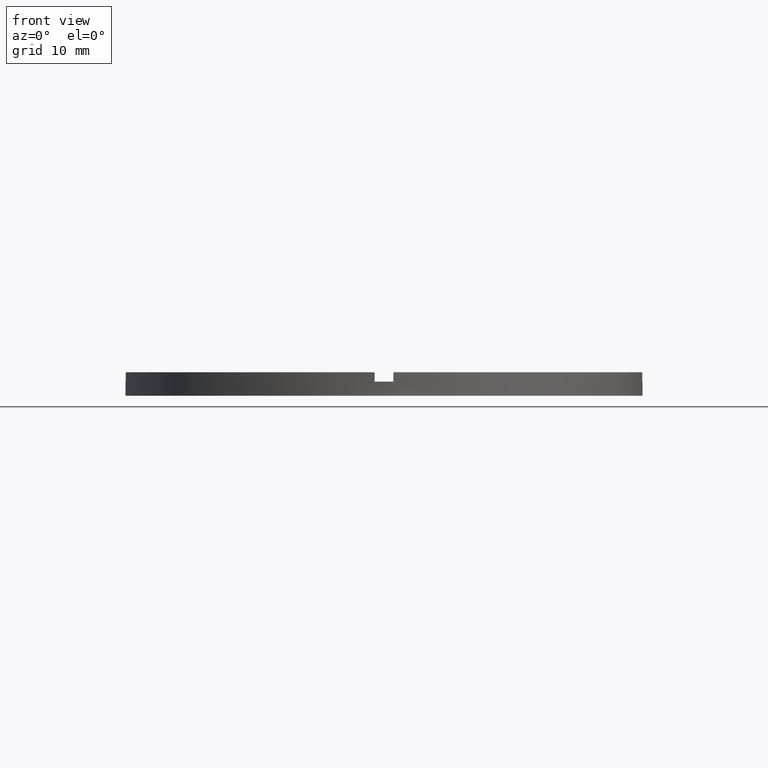
[diagram: clean part render]
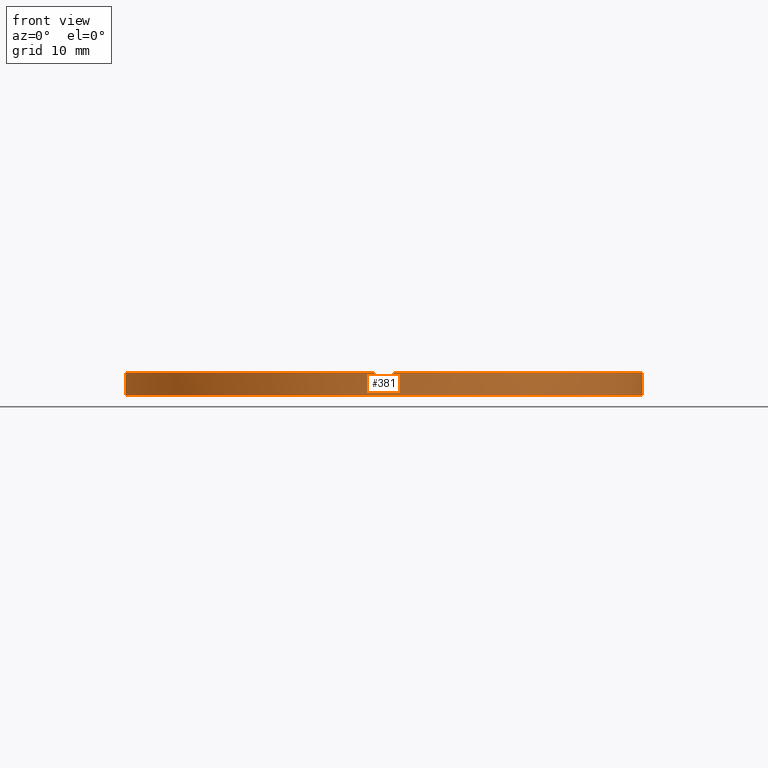
[diagram: same view with one face highlighted and labeled with its STEP entity id]
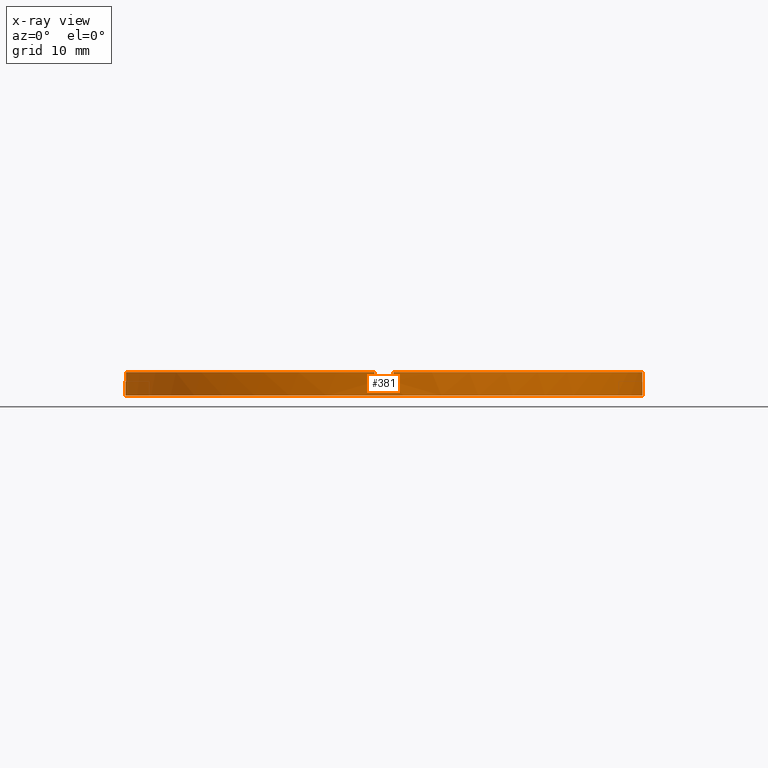
[diagram: x-ray of the same camera — body ghosted, the highlighted face saturated]
A machine part, front view. The second image highlights one B-rep face of the part: STEP entity #381.
The next image is the same camera in x-ray: the body ghosted, the highlighted face saturated — about 0% of this face is hidden behind the body in this view.
In plain terms, the highlighted cylindrical surface (partial cylindrical patch) has radius 27.5 mm, axis along (-0, -0, -1).
Its self-contained STEP definition (entity closure, byte-faithful):
#4 = EDGE_CURVE ( 'NONE', #176, #85, #69, .T. ) ;
#13 = CARTESIAN_POINT ( 'NONE',  ( 27.50000000000000000, 3.367778697655221307E-15, 0.000000000000000000 ) ) ;
#21 = DIRECTION ( 'NONE',  ( 0.000000000000000000, 0.000000000000000000, 1.000000000000000000 ) ) ;
#26 = EDGE_CURVE ( 'NONE', #460, #195, #579, .T. ) ;
#27 = DIRECTION ( 'NONE',  ( 1.000000000000000000, 0.000000000000000000, 0.000000000000000000 ) ) ;
#34 = EDGE_CURVE ( 'NONE', #177, #114, #345, .T. ) ;
#48 = DIRECTION ( 'NONE',  ( 1.000000000000000000, 0.000000000000000000, 0.000000000000000000 ) ) ;
#54 = CARTESIAN_POINT ( 'NONE',  ( 0.000000000000000000, 0.000000000000000000, 1.500000000000000000 ) ) ;
#63 = VECTOR ( 'NONE', #771, 1000.000000000000000 ) ;
#69 = CIRCLE ( 'NONE', #419, 27.50000000000000000 ) ;
#72 = CARTESIAN_POINT ( 'NONE',  ( -27.50000000000000000, 0.000000000000000000, 2.500000000000000000 ) ) ;
#80 = VECTOR ( 'NONE', #415, 1000.000000000000000 ) ;
#84 = LINE ( 'NONE', #735, #92 ) ;
#85 = VERTEX_POINT ( 'NONE', #746 ) ;
#92 = VECTOR ( 'NONE', #476, 1000.000000000000000 ) ;
#96 = DIRECTION ( 'NONE',  ( 1.000000000000000000, 0.000000000000000000, 0.000000000000000000 ) ) ;
#111 = CARTESIAN_POINT ( 'NONE',  ( -27.48181216732259102, -1.000000000000026867, 1.500000000000000000 ) ) ;
#114 = VERTEX_POINT ( 'NONE', #111 ) ;
#116 = VERTEX_POINT ( 'NONE', #178 ) ;
#124 = VERTEX_POINT ( 'NONE', #409 ) ;
#126 = VERTEX_POINT ( 'NONE', #373 ) ;
#127 = EDGE_CURVE ( 'NONE', #116, #126, #338, .T. ) ;
#136 = ORIENTED_EDGE ( 'NONE', *, *, #149, .T. ) ;
#139 = AXIS2_PLACEMENT_3D ( 'NONE', #159, #538, #96 ) ;
#144 = CARTESIAN_POINT ( 'NONE',  ( -27.48181216732259102, -1.000000000000026867, 2.500000000000000000 ) ) ;
#145 = CARTESIAN_POINT ( 'NONE',  ( 0.000000000000000000, 0.000000000000000000, 2.500000000000000000 ) ) ;
#147 = DIRECTION ( 'NONE',  ( -0.000000000000000000, 0.000000000000000000, 1.000000000000000000 ) ) ;
#149 = EDGE_CURVE ( 'NONE', #698, #85, #608, .T. ) ;
#152 = LINE ( 'NONE', #72, #426 ) ;
#155 = EDGE_CURVE ( 'NONE', #176, #465, #84, .T. ) ;
#159 = CARTESIAN_POINT ( 'NONE',  ( 0.000000000000000000, 0.000000000000000000, 2.500000000000000000 ) ) ;
#161 = EDGE_CURVE ( 'NONE', #116, #460, #359, .T. ) ;
#163 = CIRCLE ( 'NONE', #139, 27.50000000000000000 ) ;
#170 = ORIENTED_EDGE ( 'NONE', *, *, #155, .T. ) ;
#171 = AXIS2_PLACEMENT_3D ( 'NONE', #643, #454, #48 ) ;
#176 = VERTEX_POINT ( 'NONE', #587 ) ;
#177 = VERTEX_POINT ( 'NONE', #646 ) ;
#178 = CARTESIAN_POINT ( 'NONE',  ( 27.48181216732258392, -1.000000000000157208, 1.500000000000000000 ) ) ;
#191 = DIRECTION ( 'NONE',  ( -0.000000000000000000, -0.000000000000000000, -1.000000000000000000 ) ) ;
#192 = ORIENTED_EDGE ( 'NONE', *, *, #531, .T. ) ;
#193 = EDGE_LOOP ( 'NONE', ( #642, #676, #748, #432, #136, #708, #170, #715, #710, #760, #722, #192 ) ) ;
#195 = VERTEX_POINT ( 'NONE', #13 ) ;
#198 = CARTESIAN_POINT ( 'NONE',  ( 27.50000000000000000, 3.367778697655221307E-15, 1.500000000000000000 ) ) ;
#206 = DIRECTION ( 'NONE',  ( 1.000000000000000000, 0.000000000000000000, 0.000000000000000000 ) ) ;
#235 = CIRCLE ( 'NONE', #564, 27.50000000000000000 ) ;
#250 = DIRECTION ( 'NONE',  ( 0.000000000000000000, 0.000000000000000000, 1.000000000000000000 ) ) ;
#277 = CARTESIAN_POINT ( 'NONE',  ( -1.000000000000160094, -27.48181216732258392, 2.500000000000000000 ) ) ;
#285 = DIRECTION ( 'NONE',  ( 1.000000000000000000, 0.000000000000000000, 0.000000000000000000 ) ) ;
#306 = CARTESIAN_POINT ( 'NONE',  ( 0.9999999999998400169, -27.48181216732259458, 2.500000000000000000 ) ) ;
#330 = DIRECTION ( 'NONE',  ( 0.000000000000000000, 0.000000000000000000, 1.000000000000000000 ) ) ;
#338 = LINE ( 'NONE', #417, #607 ) ;
#345 = LINE ( 'NONE', #144, #605 ) ;
#359 = CIRCLE ( 'NONE', #546, 27.50000000000000000 ) ;
#371 = DIRECTION ( 'NONE',  ( -0.000000000000000000, -0.000000000000000000, -1.000000000000000000 ) ) ;
#373 = CARTESIAN_POINT ( 'NONE',  ( 27.48181216732258392, -1.000000000000157208, 2.500000000000000000 ) ) ;
#378 = EDGE_CURVE ( 'NONE', #177, #465, #163, .T. ) ;
#381 = ADVANCED_FACE ( 'NONE', ( #684 ), #679, .T. ) ;
#393 = AXIS2_PLACEMENT_3D ( 'NONE', #611, #330, #285 ) ;
#395 = CARTESIAN_POINT ( 'NONE',  ( -27.50000000000000000, 0.000000000000000000, 1.500000000000000000 ) ) ;
#400 = DIRECTION ( 'NONE',  ( 0.000000000000000000, 0.000000000000000000, 1.000000000000000000 ) ) ;
#409 = CARTESIAN_POINT ( 'NONE',  ( -27.50000000000000000, 0.000000000000000000, 0.000000000000000000 ) ) ;
#413 = EDGE_CURVE ( 'NONE', #442, #124, #152, .T. ) ;
#415 = DIRECTION ( 'NONE',  ( -0.000000000000000000, -0.000000000000000000, -1.000000000000000000 ) ) ;
#417 = CARTESIAN_POINT ( 'NONE',  ( 27.48181216732258392, -1.000000000000157208, 2.500000000000000000 ) ) ;
#419 = AXIS2_PLACEMENT_3D ( 'NONE', #753, #147, #27 ) ;
#426 = VECTOR ( 'NONE', #371, 1000.000000000000000 ) ;
#432 = ORIENTED_EDGE ( 'NONE', *, *, #507, .F. ) ;
#442 = VERTEX_POINT ( 'NONE', #395 ) ;
#450 = AXIS2_PLACEMENT_3D ( 'NONE', #543, #707, #588 ) ;
#454 = DIRECTION ( 'NONE',  ( 0.000000000000000000, 0.000000000000000000, 1.000000000000000000 ) ) ;
#460 = VERTEX_POINT ( 'NONE', #198 ) ;
#465 = VERTEX_POINT ( 'NONE', #277 ) ;
#476 = DIRECTION ( 'NONE',  ( 0.000000000000000000, 0.000000000000000000, 1.000000000000000000 ) ) ;
#478 = CIRCLE ( 'NONE', #171, 27.50000000000000000 ) ;
#481 = CIRCLE ( 'NONE', #393, 27.50000000000000000 ) ;
#507 = EDGE_CURVE ( 'NONE', #698, #126, #235, .T. ) ;
#526 = CARTESIAN_POINT ( 'NONE',  ( 0.9999999999998400169, -27.48181216732259458, 2.500000000000000000 ) ) ;
#531 = EDGE_CURVE ( 'NONE', #124, #195, #481, .T. ) ;
#538 = DIRECTION ( 'NONE',  ( 0.000000000000000000, 0.000000000000000000, 1.000000000000000000 ) ) ;
#543 = CARTESIAN_POINT ( 'NONE',  ( 0.000000000000000000, 0.000000000000000000, 2.500000000000000000 ) ) ;
#546 = AXIS2_PLACEMENT_3D ( 'NONE', #54, #21, #652 ) ;
#564 = AXIS2_PLACEMENT_3D ( 'NONE', #145, #400, #206 ) ;
#579 = LINE ( 'NONE', #673, #63 ) ;
#587 = CARTESIAN_POINT ( 'NONE',  ( -1.000000000000160094, -27.48181216732258392, 1.500000000000000000 ) ) ;
#588 = DIRECTION ( 'NONE',  ( -1.000000000000000000, 0.000000000000000000, 0.000000000000000000 ) ) ;
#605 = VECTOR ( 'NONE', #191, 1000.000000000000000 ) ;
#607 = VECTOR ( 'NONE', #250, 1000.000000000000000 ) ;
#608 = LINE ( 'NONE', #306, #80 ) ;
#611 = CARTESIAN_POINT ( 'NONE',  ( 0.000000000000000000, 0.000000000000000000, 0.000000000000000000 ) ) ;
#642 = ORIENTED_EDGE ( 'NONE', *, *, #26, .F. ) ;
#643 = CARTESIAN_POINT ( 'NONE',  ( 0.000000000000000000, 0.000000000000000000, 1.500000000000000000 ) ) ;
#646 = CARTESIAN_POINT ( 'NONE',  ( -27.48181216732259102, -1.000000000000026867, 2.500000000000000000 ) ) ;
#652 = DIRECTION ( 'NONE',  ( 1.000000000000000000, 0.000000000000000000, 0.000000000000000000 ) ) ;
#673 = CARTESIAN_POINT ( 'NONE',  ( 27.50000000000000000, 3.367778697655221307E-15, 2.500000000000000000 ) ) ;
#676 = ORIENTED_EDGE ( 'NONE', *, *, #161, .F. ) ;
#679 = CYLINDRICAL_SURFACE ( 'NONE', #450, 27.50000000000000000 ) ;
#684 = FACE_OUTER_BOUND ( 'NONE', #193, .T. ) ;
#698 = VERTEX_POINT ( 'NONE', #526 ) ;
#707 = DIRECTION ( 'NONE',  ( -0.000000000000000000, -0.000000000000000000, -1.000000000000000000 ) ) ;
#708 = ORIENTED_EDGE ( 'NONE', *, *, #4, .F. ) ;
#710 = ORIENTED_EDGE ( 'NONE', *, *, #34, .T. ) ;
#715 = ORIENTED_EDGE ( 'NONE', *, *, #378, .F. ) ;
#722 = ORIENTED_EDGE ( 'NONE', *, *, #413, .T. ) ;
#729 = EDGE_CURVE ( 'NONE', #442, #114, #478, .T. ) ;
#735 = CARTESIAN_POINT ( 'NONE',  ( -1.000000000000160094, -27.48181216732258392, 2.500000000000000000 ) ) ;
#746 = CARTESIAN_POINT ( 'NONE',  ( 0.9999999999998400169, -27.48181216732259458, 1.500000000000000000 ) ) ;
#748 = ORIENTED_EDGE ( 'NONE', *, *, #127, .T. ) ;
#753 = CARTESIAN_POINT ( 'NONE',  ( 0.000000000000000000, 0.000000000000000000, 1.500000000000000000 ) ) ;
#760 = ORIENTED_EDGE ( 'NONE', *, *, #729, .F. ) ;
#771 = DIRECTION ( 'NONE',  ( -0.000000000000000000, -0.000000000000000000, -1.000000000000000000 ) ) ;